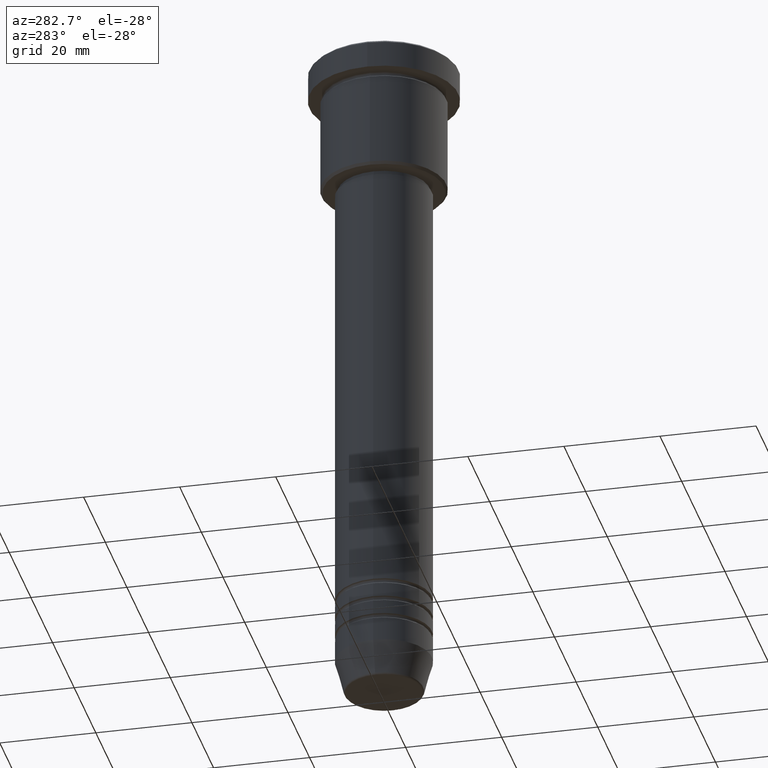
[diagram: clean part render]
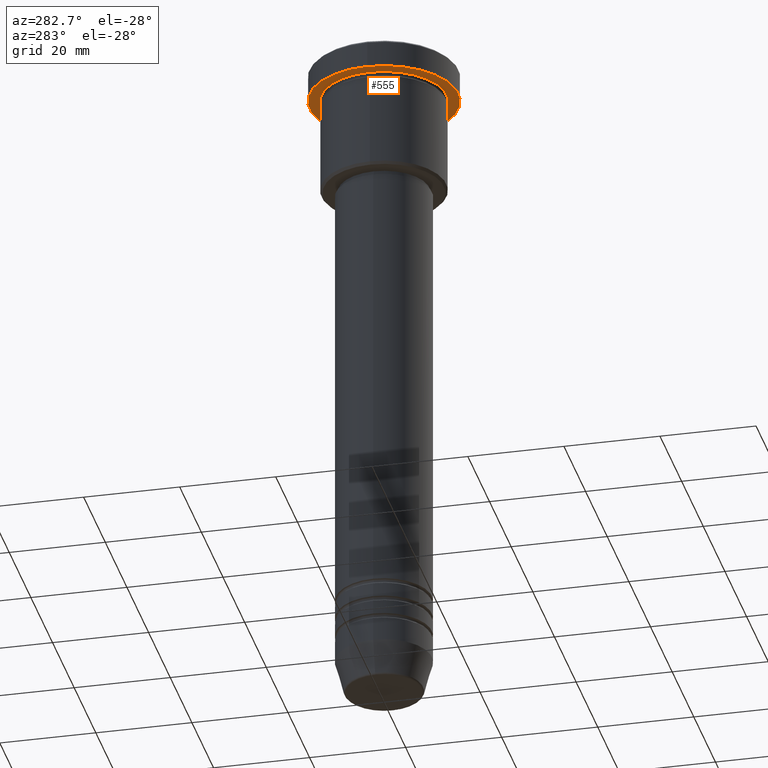
[diagram: same view with one face highlighted and labeled with its STEP entity id]
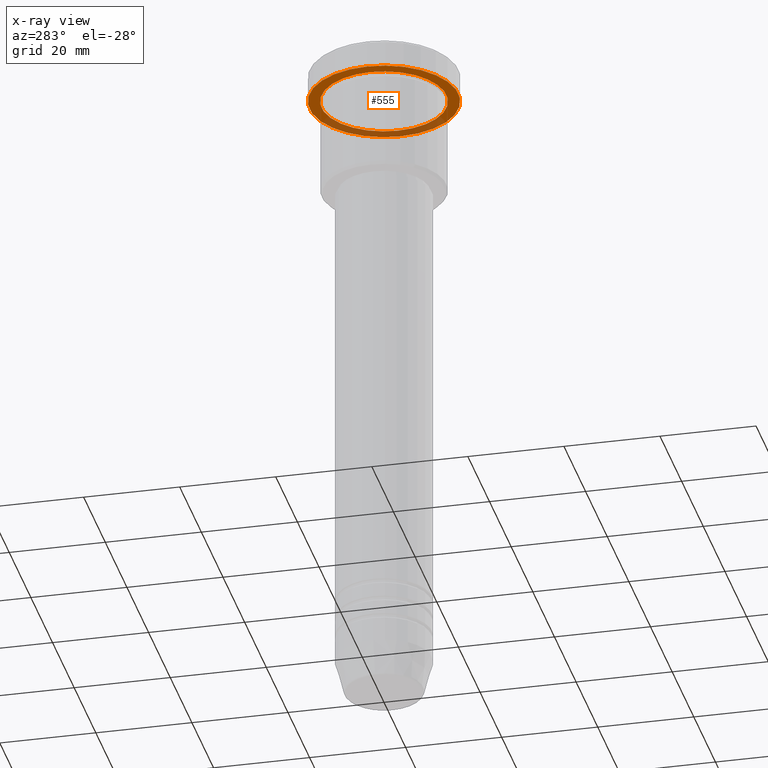
[diagram: x-ray of the same camera — body ghosted, the highlighted face saturated]
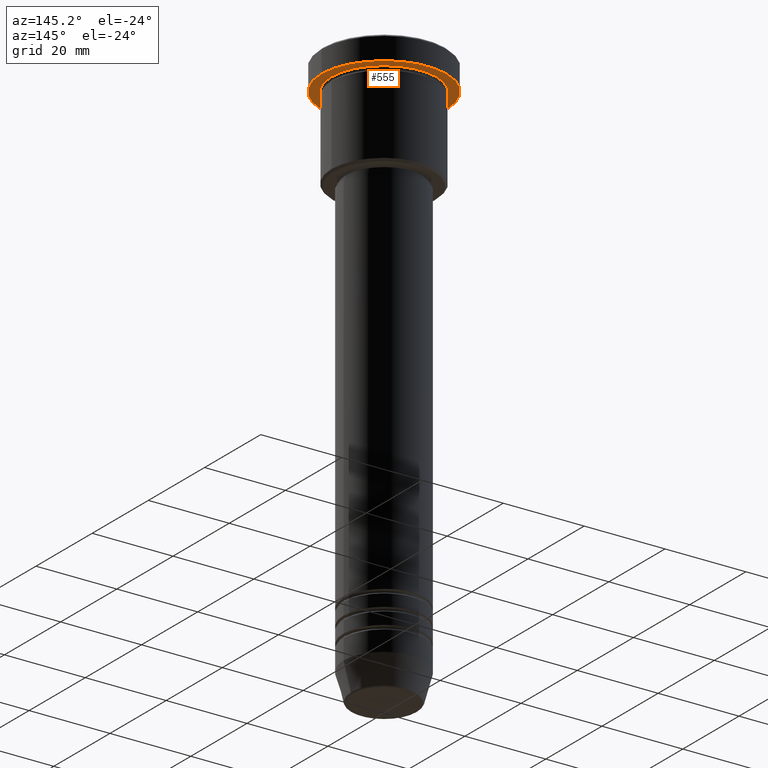
[diagram: same view with one face highlighted and labeled with its STEP entity id]
A machine part, auxiliary view. The second image highlights one B-rep face of the part: STEP entity #555.
The next image is the same camera in x-ray: the body ghosted, the highlighted face saturated — about 32% of this face is hidden behind the body in this view.
A second angle (auxiliary view) of the same face is appended — the face is thin or edge-on in the first view.
In plain terms, the highlighted planar face has unit normal (0, 0, -1).
Its self-contained STEP definition (entity closure, byte-faithful):
#7 = AXIS2_PLACEMENT_3D ( 'NONE', #368, #840, #179 ) ;
#63 = FACE_OUTER_BOUND ( 'NONE', #245, .T. ) ;
#70 = EDGE_CURVE ( 'NONE', #177, #217, #361, .T. ) ;
#78 = CARTESIAN_POINT ( 'NONE',  ( 13.00000000000000000, 1.592040838891559095E-15, -5.999999999999994671 ) ) ;
#85 = AXIS2_PLACEMENT_3D ( 'NONE', #900, #254, #1079 ) ;
#112 = VERTEX_POINT ( 'NONE', #78 ) ;
#149 = FACE_BOUND ( 'NONE', #1039, .T. ) ;
#166 = AXIS2_PLACEMENT_3D ( 'NONE', #844, #1177, #908 ) ;
#177 = VERTEX_POINT ( 'NONE', #1015 ) ;
#179 = DIRECTION ( 'NONE',  ( -1.000000000000000000, 0.000000000000000000, 0.000000000000000000 ) ) ;
#217 = VERTEX_POINT ( 'NONE', #278 ) ;
#245 = EDGE_LOOP ( 'NONE', ( #827, #776 ) ) ;
#254 = DIRECTION ( 'NONE',  ( 0.000000000000000000, 0.000000000000000000, -1.000000000000000000 ) ) ;
#256 = CARTESIAN_POINT ( 'NONE',  ( 0.000000000000000000, 0.000000000000000000, -5.999999999999995559 ) ) ;
#278 = CARTESIAN_POINT ( 'NONE',  ( -15.50000000000000000, 1.898202538678397557E-15, -5.999999999999995559 ) ) ;
#361 = CIRCLE ( 'NONE', #1113, 15.50000000000000000 ) ;
#368 = CARTESIAN_POINT ( 'NONE',  ( 0.000000000000000000, 0.000000000000000000, -5.999999999999995559 ) ) ;
#395 = CIRCLE ( 'NONE', #992, 15.50000000000000000 ) ;
#416 = CIRCLE ( 'NONE', #166, 13.00000000000000000 ) ;
#447 = DIRECTION ( 'NONE',  ( -0.000000000000000000, -0.000000000000000000, 1.000000000000000000 ) ) ;
#555 = ADVANCED_FACE ( 'NONE', ( #149, #63 ), #608, .T. ) ;
#608 = PLANE ( 'NONE',  #85 ) ;
#634 = EDGE_CURVE ( 'NONE', #1054, #112, #1116, .T. ) ;
#776 = ORIENTED_EDGE ( 'NONE', *, *, #949, .F. ) ;
#810 = CARTESIAN_POINT ( 'NONE',  ( 0.000000000000000000, 0.000000000000000000, -5.999999999999995559 ) ) ;
#814 = ORIENTED_EDGE ( 'NONE', *, *, #634, .T. ) ;
#827 = ORIENTED_EDGE ( 'NONE', *, *, #70, .F. ) ;
#840 = DIRECTION ( 'NONE',  ( -0.000000000000000000, -0.000000000000000000, 1.000000000000000000 ) ) ;
#844 = CARTESIAN_POINT ( 'NONE',  ( 0.000000000000000000, 0.000000000000000000, -5.999999999999995559 ) ) ;
#863 = ORIENTED_EDGE ( 'NONE', *, *, #1080, .T. ) ;
#881 = DIRECTION ( 'NONE',  ( 1.000000000000000000, 0.000000000000000000, 0.000000000000000000 ) ) ;
#900 = CARTESIAN_POINT ( 'NONE',  ( 0.000000000000000000, 15.50000000000000000, -5.999999999999995559 ) ) ;
#908 = DIRECTION ( 'NONE',  ( -1.000000000000000000, 0.000000000000000000, 0.000000000000000000 ) ) ;
#949 = EDGE_CURVE ( 'NONE', #217, #177, #395, .T. ) ;
#983 = DIRECTION ( 'NONE',  ( -0.000000000000000000, -0.000000000000000000, 1.000000000000000000 ) ) ;
#992 = AXIS2_PLACEMENT_3D ( 'NONE', #810, #447, #881 ) ;
#1015 = CARTESIAN_POINT ( 'NONE',  ( 15.50000000000000000, 0.000000000000000000, -5.999999999999995559 ) ) ;
#1039 = EDGE_LOOP ( 'NONE', ( #814, #863 ) ) ;
#1054 = VERTEX_POINT ( 'NONE', #1125 ) ;
#1079 = DIRECTION ( 'NONE',  ( -1.000000000000000000, 0.000000000000000000, -0.000000000000000000 ) ) ;
#1080 = EDGE_CURVE ( 'NONE', #112, #1054, #416, .T. ) ;
#1113 = AXIS2_PLACEMENT_3D ( 'NONE', #256, #983, #1165 ) ;
#1116 = CIRCLE ( 'NONE', #7, 13.00000000000000000 ) ;
#1125 = CARTESIAN_POINT ( 'NONE',  ( -13.00000000000000000, 0.000000000000000000, -5.999999999999994671 ) ) ;
#1165 = DIRECTION ( 'NONE',  ( 1.000000000000000000, 0.000000000000000000, 0.000000000000000000 ) ) ;
#1177 = DIRECTION ( 'NONE',  ( -0.000000000000000000, -0.000000000000000000, 1.000000000000000000 ) ) ;